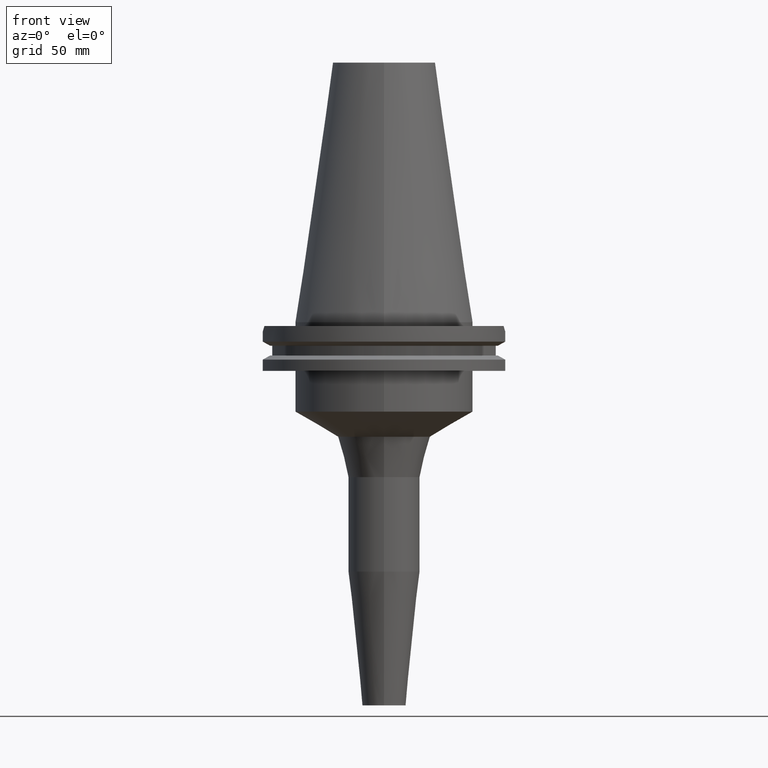
[diagram: clean part render]
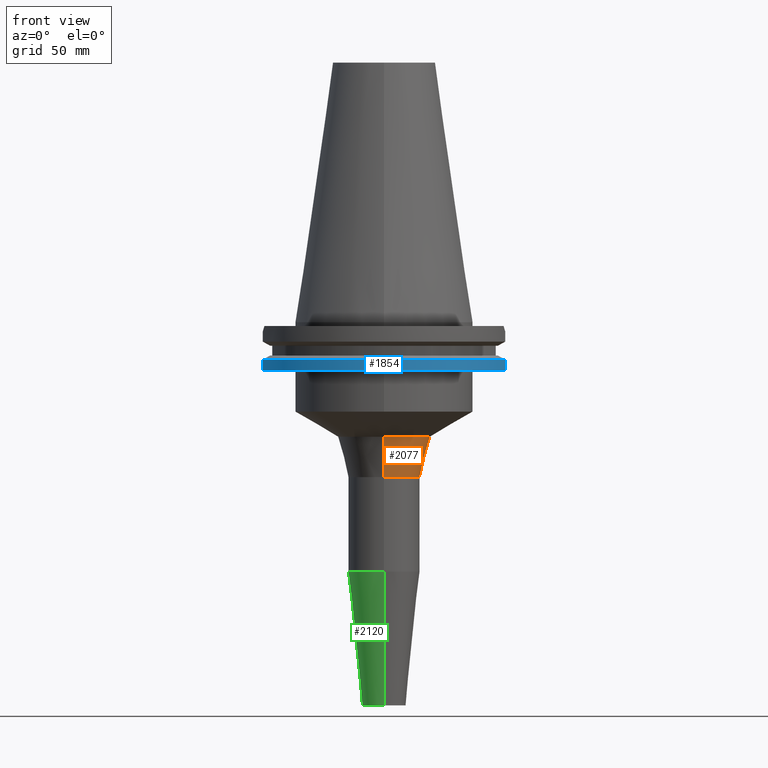
[diagram: same view with three faces highlighted in distinct colors, each labeled with its STEP entity id]
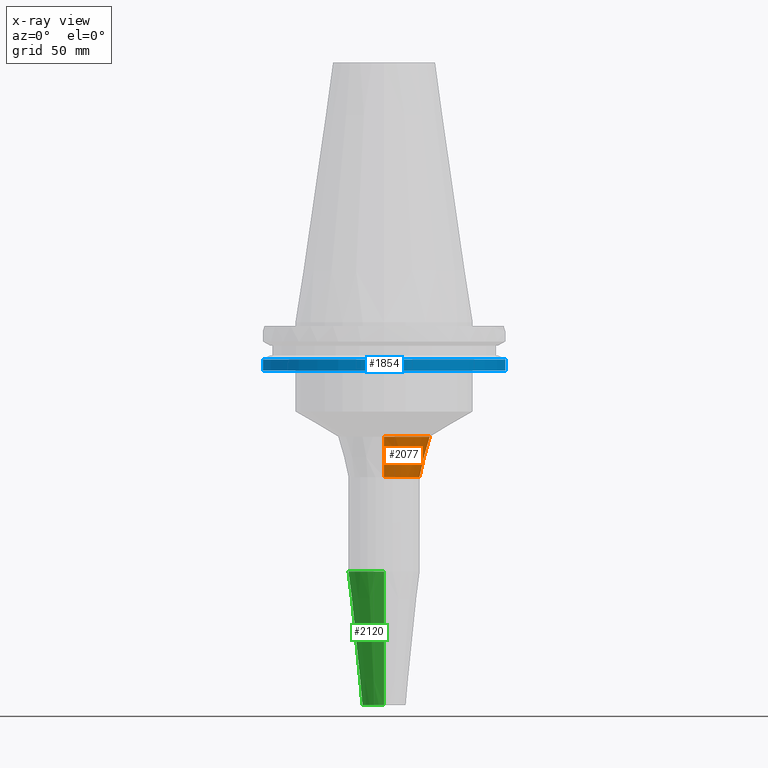
[diagram: x-ray of the same camera — body ghosted, the three highlighted faces saturated]
A machine part, front view with three faces highlighted in distinct colors.
The next image is the same camera in x-ray (body ghosted, the three faces saturated) — at least one of them is partly hidden behind the body in this view.
Their STEP definitions:

[orange] entity #2077 — the highlighted conical surface has half-angle 14.403 deg.
#900=DIRECTION('',(0.E0,2.487406017199E-1,-9.685701384288E-1));
#901=VECTOR('',#900,1.633850048540E1);
#902=CARTESIAN_POINT('',(0.E0,-1.806404844194E1,-4.483301632313E1));
#903=LINE('',#902,#901);
#915=DIRECTION('',(0.E0,-2.487406017199E-1,-9.685701384288E-1));
#916=VECTOR('',#915,1.633850048540E1);
#917=CARTESIAN_POINT('',(0.E0,1.806404844194E1,-4.483301632313E1));
#918=LINE('',#917,#916);
#922=CARTESIAN_POINT('',(0.E0,0.E0,-6.0658E1));
#923=DIRECTION('',(0.E0,0.E0,-1.E0));
#924=DIRECTION('',(0.E0,1.E0,0.E0));
#925=AXIS2_PLACEMENT_3D('',#922,#923,#924);
#930=CARTESIAN_POINT('',(0.E0,0.E0,-4.483301632313E1));
#931=DIRECTION('',(0.E0,0.E0,1.E0));
#932=DIRECTION('',(0.E0,-1.E0,0.E0));
#933=AXIS2_PLACEMENT_3D('',#930,#931,#932);
#1244=CARTESIAN_POINT('',(0.E0,1.4E1,-6.0658E1));
#1245=VERTEX_POINT('',#1244);
#1246=CARTESIAN_POINT('',(0.E0,-1.4E1,-6.0658E1));
#1247=VERTEX_POINT('',#1246);
#1248=CARTESIAN_POINT('',(0.E0,1.806404844194E1,-4.483301632313E1));
#1249=VERTEX_POINT('',#1248);
#1250=CARTESIAN_POINT('',(0.E0,-1.806404844194E1,-4.483301632313E1));
#1251=VERTEX_POINT('',#1250);
#2065=CARTESIAN_POINT('',(0.E0,0.E0,-5.274550816157E1));
#2066=DIRECTION('',(0.E0,0.E0,1.E0));
#2067=DIRECTION('',(0.E0,1.E0,0.E0));
#2068=AXIS2_PLACEMENT_3D('',#2065,#2066,#2067);
#2069=CONICAL_SURFACE('',#2068,1.603202422097E1,1.4403E1);
#2070=ORIENTED_EDGE('',*,*,#2055,.T.);
#2072=ORIENTED_EDGE('',*,*,#2071,.T.);
#2073=ORIENTED_EDGE('',*,*,#2058,.F.);
#2074=ORIENTED_EDGE('',*,*,#2029,.T.);
#2075=EDGE_LOOP('',(#2070,#2072,#2073,#2074));
#2076=FACE_OUTER_BOUND('',#2075,.F.);
#926=CIRCLE('',#925,1.4E1);
#934=CIRCLE('',#933,1.806404844194E1);
#2029=EDGE_CURVE('',#1251,#1249,#934,.T.);
#2055=EDGE_CURVE('',#1249,#1245,#918,.T.);
#2058=EDGE_CURVE('',#1251,#1247,#903,.T.);
#2071=EDGE_CURVE('',#1245,#1247,#926,.T.);
#2077=ADVANCED_FACE('',(#2076),#2069,.T.);

[blue] entity #1854 — the highlighted cylindrical surface (partial cylindrical patch) has radius 49.2125 mm, axis along (0, 0, -1).
#235=CARTESIAN_POINT('',(0.E0,1.398301715266E-14,-1.905E1));
#236=DIRECTION('',(0.E0,0.E0,1.E0));
#237=DIRECTION('',(-9.647287063661E-1,-2.632461264923E-1,0.E0));
#238=AXIS2_PLACEMENT_3D('',#235,#236,#237);
#243=CARTESIAN_POINT('',(0.E0,1.398301715266E-14,-1.905E1));
#244=DIRECTION('',(0.E0,0.E0,1.E0));
#245=DIRECTION('',(0.E0,-1.E0,0.E0));
#246=AXIS2_PLACEMENT_3D('',#243,#244,#245);
#626=DIRECTION('',(-1.228324721565E-13,4.767839379758E-14,-1.E0));
#627=VECTOR('',#626,4.396333230921E0);
#628=CARTESIAN_POINT('',(4.747671146204E1,-1.2955E1,-1.465366676908E1));
#629=LINE('',#628,#627);
#633=DIRECTION('',(-1.341459893288E-13,-4.727433961285E-14,1.E0));
#634=VECTOR('',#633,4.396333230921E0);
#635=CARTESIAN_POINT('',(-4.747671146204E1,-1.2955E1,-1.905E1));
#636=LINE('',#635,#634);
#792=CARTESIAN_POINT('',(0.E0,0.E0,-1.465366676908E1));
#793=DIRECTION('',(0.E0,0.E0,-1.E0));
#794=DIRECTION('',(9.647287063661E-1,-2.632461264923E-1,0.E0));
#795=AXIS2_PLACEMENT_3D('',#792,#793,#794);
#800=CARTESIAN_POINT('',(0.E0,0.E0,-1.465366676908E1));
#801=DIRECTION('',(0.E0,0.E0,-1.E0));
#802=DIRECTION('',(0.E0,-1.E0,0.E0));
#803=AXIS2_PLACEMENT_3D('',#800,#801,#802);
#1274=CARTESIAN_POINT('',(-4.747671146204E1,-1.2955E1,-1.905E1));
#1275=VERTEX_POINT('',#1274);
#1276=CARTESIAN_POINT('',(0.E0,-4.92125E1,-1.905E1));
#1277=CARTESIAN_POINT('',(4.747671146204E1,-1.2955E1,-1.905E1));
#1278=VERTEX_POINT('',#1276);
#1279=VERTEX_POINT('',#1277);
#1288=CARTESIAN_POINT('',(4.747671146204E1,-1.2955E1,-1.465366676908E1));
#1289=VERTEX_POINT('',#1288);
#1300=CARTESIAN_POINT('',(-4.747671146204E1,-1.2955E1,-1.465366676908E1));
#1301=VERTEX_POINT('',#1300);
#1302=CARTESIAN_POINT('',(0.E0,-4.92125E1,-1.465366676908E1));
#1303=VERTEX_POINT('',#1302);
#1838=CARTESIAN_POINT('',(0.E0,1.398301715266E-14,1.1418E2));
#1839=DIRECTION('',(0.E0,0.E0,-1.E0));
#1840=DIRECTION('',(0.E0,-1.E0,0.E0));
#1841=AXIS2_PLACEMENT_3D('',#1838,#1839,#1840);
#1842=CYLINDRICAL_SURFACE('',#1841,4.92125E1);
#1843=ORIENTED_EDGE('',*,*,#1820,.T.);
#1844=ORIENTED_EDGE('',*,*,#1539,.F.);
#1845=ORIENTED_EDGE('',*,*,#1537,.F.);
#1847=ORIENTED_EDGE('',*,*,#1846,.T.);
#1849=ORIENTED_EDGE('',*,*,#1848,.F.);
#1851=ORIENTED_EDGE('',*,*,#1850,.F.);
#1852=EDGE_LOOP('',(#1843,#1844,#1845,#1847,#1849,#1851));
#1853=FACE_OUTER_BOUND('',#1852,.F.);
#239=CIRCLE('',#238,4.92125E1);
#247=CIRCLE('',#246,4.92125E1);
#796=CIRCLE('',#795,4.92125E1);
#804=CIRCLE('',#803,4.92125E1);
#1537=EDGE_CURVE('',#1275,#1278,#239,.T.);
#1539=EDGE_CURVE('',#1278,#1279,#247,.T.);
#1820=EDGE_CURVE('',#1289,#1279,#629,.T.);
#1846=EDGE_CURVE('',#1275,#1301,#636,.T.);
#1848=EDGE_CURVE('',#1303,#1301,#804,.T.);
#1850=EDGE_CURVE('',#1289,#1303,#796,.T.);
#1854=ADVANCED_FACE('',(#1853),#1842,.T.);

[green] entity #2120 — the highlighted conical surface has half-angle 6 deg.
#952=CARTESIAN_POINT('',(0.E0,-1.516547459414E-14,-9.767099550178E1));
#953=DIRECTION('',(0.E0,0.E0,1.E0));
#954=DIRECTION('',(0.E0,1.E0,0.E0));
#955=AXIS2_PLACEMENT_3D('',#952,#953,#954);
#960=DIRECTION('',(0.E0,1.045284632677E-1,-9.945218953683E-1));
#961=VECTOR('',#960,5.261724728428E1);
#962=CARTESIAN_POINT('',(0.E0,-1.4E1,-9.767099550178E1));
#963=LINE('',#962,#961);
#967=DIRECTION('',(0.E0,-1.045284632677E-1,-9.945218953683E-1));
#968=VECTOR('',#967,5.261724728428E1);
#969=CARTESIAN_POINT('',(0.E0,1.4E1,-9.767099550178E1));
#970=LINE('',#969,#968);
#990=CARTESIAN_POINT('',(0.E0,-1.516547459414E-14,-1.5E2));
#991=DIRECTION('',(0.E0,0.E0,1.E0));
#992=DIRECTION('',(0.E0,1.E0,0.E0));
#993=AXIS2_PLACEMENT_3D('',#990,#991,#992);
#1236=CARTESIAN_POINT('',(0.E0,-8.500000000001E0,-1.5E2));
#1237=CARTESIAN_POINT('',(0.E0,8.500000000001E0,-1.5E2));
#1238=VERTEX_POINT('',#1236);
#1239=VERTEX_POINT('',#1237);
#1240=CARTESIAN_POINT('',(0.E0,1.4E1,-9.767099550178E1));
#1241=VERTEX_POINT('',#1240);
#1242=CARTESIAN_POINT('',(0.E0,-1.4E1,-9.767099550178E1));
#1243=VERTEX_POINT('',#1242);
#2106=CARTESIAN_POINT('',(0.E0,-1.516547459414E-14,-1.238354977509E2));
#2107=DIRECTION('',(0.E0,0.E0,1.E0));
#2108=DIRECTION('',(0.E0,1.E0,0.E0));
#2109=AXIS2_PLACEMENT_3D('',#2106,#2107,#2108);
#2110=CONICAL_SURFACE('',#2109,1.125E1,6.E0);
#2112=ORIENTED_EDGE('',*,*,#2111,.F.);
#2113=ORIENTED_EDGE('',*,*,#2101,.T.);
#2115=ORIENTED_EDGE('',*,*,#2114,.T.);
#2117=ORIENTED_EDGE('',*,*,#2116,.F.);
#2118=EDGE_LOOP('',(#2112,#2113,#2115,#2117));
#2119=FACE_OUTER_BOUND('',#2118,.F.);
#956=CIRCLE('',#955,1.4E1);
#994=CIRCLE('',#993,8.500000000001E0);
#2101=EDGE_CURVE('',#1241,#1243,#956,.T.);
#2111=EDGE_CURVE('',#1241,#1239,#970,.T.);
#2114=EDGE_CURVE('',#1243,#1238,#963,.T.);
#2116=EDGE_CURVE('',#1239,#1238,#994,.T.);
#2120=ADVANCED_FACE('',(#2119),#2110,.T.);